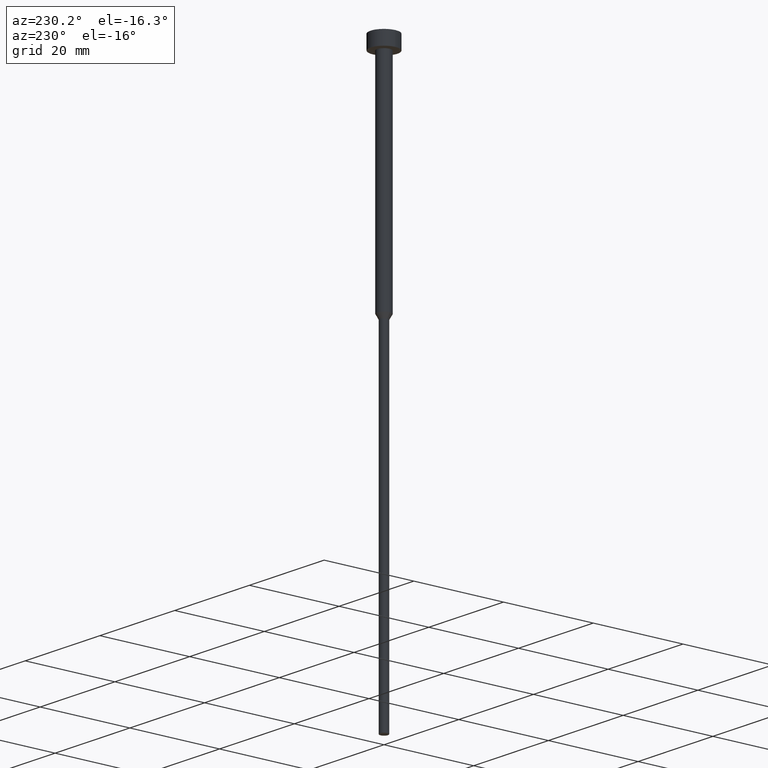
[diagram: clean part render]
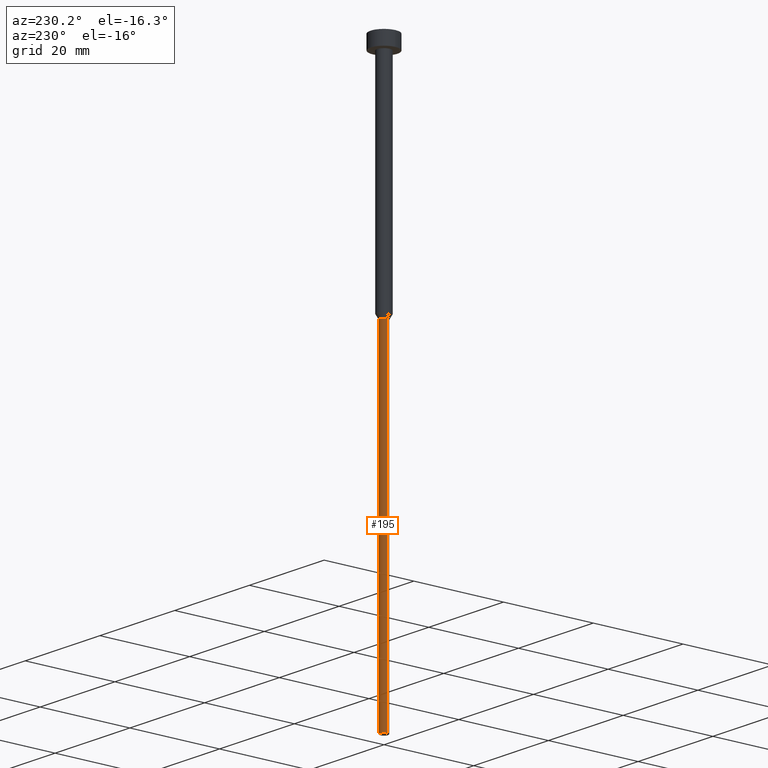
[diagram: same view with one face highlighted and labeled with its STEP entity id]
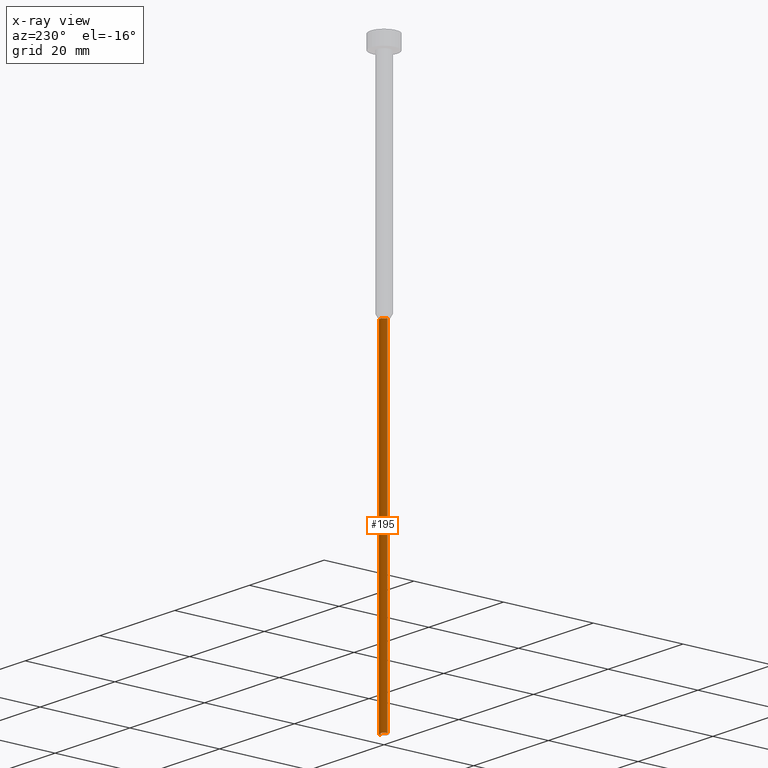
[diagram: x-ray of the same camera — body ghosted, the highlighted face saturated]
A machine part, auxiliary view. The second image highlights one B-rep face of the part: STEP entity #195.
The next image is the same camera in x-ray: the body ghosted, the highlighted face saturated — about 0% of this face is hidden behind the body in this view.
In plain terms, the highlighted cylindrical surface (edge-blend (fillet) strip) has radius 0.9 mm, axis along (-0, -0, 1).
Its self-contained STEP definition (entity closure, byte-faithful):
#5 = EDGE_CURVE ( 'NONE', #187, #23, #146, .T. ) ;
#6 = CIRCLE ( 'NONE', #45, 0.9000000000000000222 ) ;
#7 = AXIS2_PLACEMENT_3D ( 'NONE', #168, #227, #299 ) ;
#22 = CARTESIAN_POINT ( 'NONE',  ( -0.9000000000000000222, 1.102182119232617788E-16, -51.03923048454132783 ) ) ;
#23 = VERTEX_POINT ( 'NONE', #190 ) ;
#32 = CYLINDRICAL_SURFACE ( 'NONE', #7, 0.9000000000000000222 ) ;
#45 = AXIS2_PLACEMENT_3D ( 'NONE', #134, #188, #108 ) ;
#71 = VERTEX_POINT ( 'NONE', #22 ) ;
#78 = EDGE_CURVE ( 'NONE', #23, #71, #98, .T. ) ;
#98 = CIRCLE ( 'NONE', #284, 0.9000000000000000222 ) ;
#104 = EDGE_CURVE ( 'NONE', #110, #71, #132, .T. ) ;
#108 = DIRECTION ( 'NONE',  ( 1.000000000000000000, 0.000000000000000000, 0.000000000000000000 ) ) ;
#110 = VERTEX_POINT ( 'NONE', #249 ) ;
#114 = CARTESIAN_POINT ( 'NONE',  ( 0.9000000000000000222, 0.000000000000000000, -125.0000000000000000 ) ) ;
#121 = DIRECTION ( 'NONE',  ( -0.000000000000000000, -0.000000000000000000, 1.000000000000000000 ) ) ;
#123 = EDGE_CURVE ( 'NONE', #187, #110, #6, .T. ) ;
#125 = ORIENTED_EDGE ( 'NONE', *, *, #5, .F. ) ;
#132 = LINE ( 'NONE', #253, #340 ) ;
#134 = CARTESIAN_POINT ( 'NONE',  ( 0.000000000000000000, 0.000000000000000000, -125.0000000000000000 ) ) ;
#146 = LINE ( 'NONE', #265, #266 ) ;
#168 = CARTESIAN_POINT ( 'NONE',  ( 0.000000000000000000, 0.000000000000000000, 0.000000000000000000 ) ) ;
#170 = ORIENTED_EDGE ( 'NONE', *, *, #123, .T. ) ;
#187 = VERTEX_POINT ( 'NONE', #114 ) ;
#188 = DIRECTION ( 'NONE',  ( -0.000000000000000000, -0.000000000000000000, 1.000000000000000000 ) ) ;
#190 = CARTESIAN_POINT ( 'NONE',  ( 0.9000000000000000222, 0.000000000000000000, -51.03923048454132783 ) ) ;
#195 = ADVANCED_FACE ( 'NONE', ( #252 ), #32, .T. ) ;
#216 = CARTESIAN_POINT ( 'NONE',  ( 0.000000000000000000, 0.000000000000000000, -51.03923048454132783 ) ) ;
#227 = DIRECTION ( 'NONE',  ( -0.000000000000000000, -0.000000000000000000, 1.000000000000000000 ) ) ;
#244 = DIRECTION ( 'NONE',  ( -0.000000000000000000, -0.000000000000000000, 1.000000000000000000 ) ) ;
#249 = CARTESIAN_POINT ( 'NONE',  ( -0.9000000000000000222, 1.102182119232617788E-16, -125.0000000000000000 ) ) ;
#251 = ORIENTED_EDGE ( 'NONE', *, *, #78, .F. ) ;
#252 = FACE_OUTER_BOUND ( 'NONE', #326, .T. ) ;
#253 = CARTESIAN_POINT ( 'NONE',  ( -0.9000000000000000222, 1.102182119232617788E-16, 0.000000000000000000 ) ) ;
#265 = CARTESIAN_POINT ( 'NONE',  ( 0.9000000000000000222, 0.000000000000000000, 0.000000000000000000 ) ) ;
#266 = VECTOR ( 'NONE', #121, 1000.000000000000000 ) ;
#284 = AXIS2_PLACEMENT_3D ( 'NONE', #216, #324, #304 ) ;
#299 = DIRECTION ( 'NONE',  ( 1.000000000000000000, 0.000000000000000000, 0.000000000000000000 ) ) ;
#304 = DIRECTION ( 'NONE',  ( 1.000000000000000000, 0.000000000000000000, 0.000000000000000000 ) ) ;
#314 = ORIENTED_EDGE ( 'NONE', *, *, #104, .T. ) ;
#324 = DIRECTION ( 'NONE',  ( -0.000000000000000000, -0.000000000000000000, 1.000000000000000000 ) ) ;
#326 = EDGE_LOOP ( 'NONE', ( #170, #314, #251, #125 ) ) ;
#340 = VECTOR ( 'NONE', #244, 1000.000000000000000 ) ;